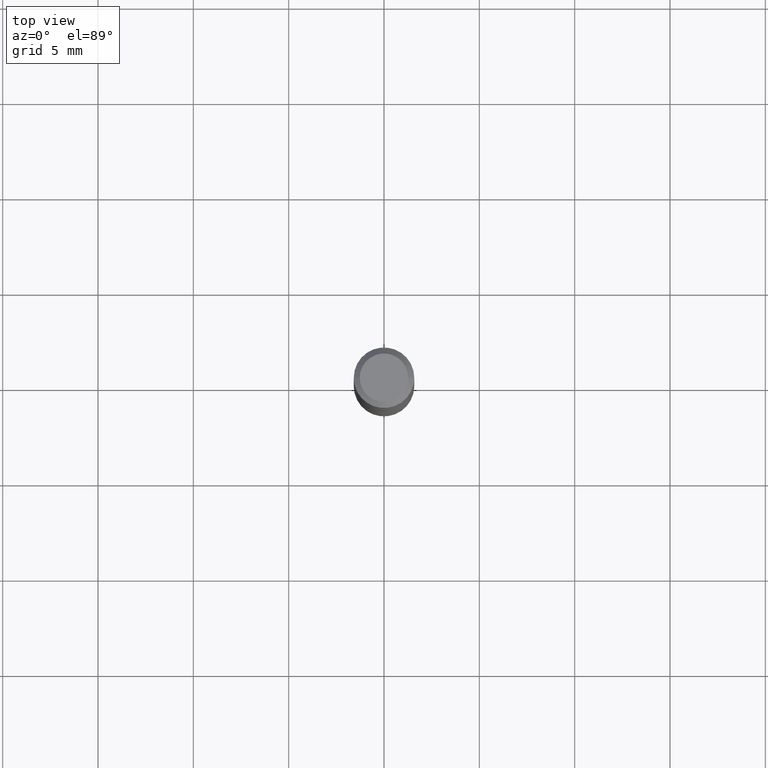
[diagram: clean part render]
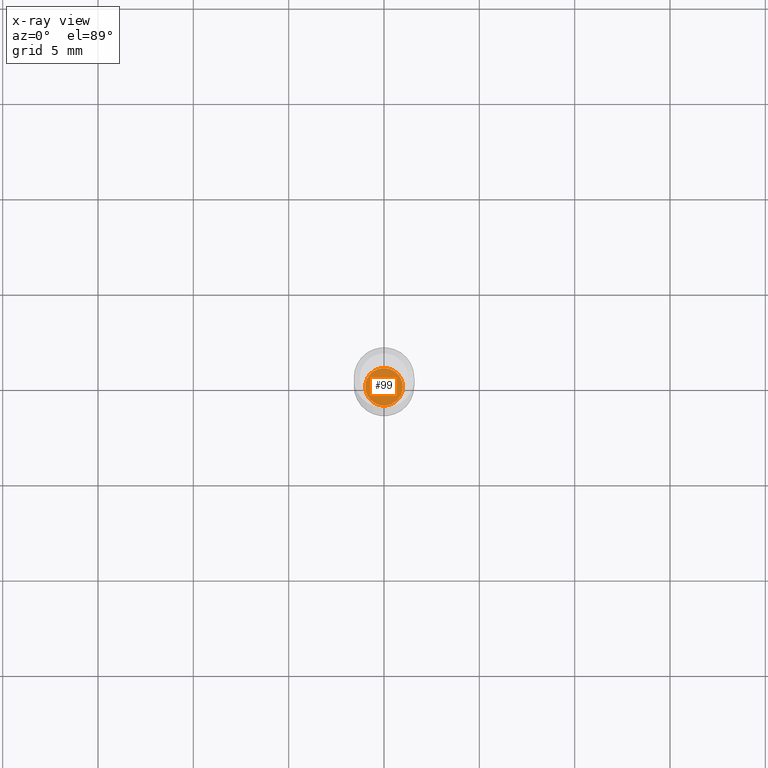
[diagram: x-ray — body ghosted, one internal face saturated and labeled with its STEP entity id]
A machine part, top view, then the same camera in x-ray: the body is ghosted and one INTERNAL B-rep face — a face not visible from any outside direction — is saturated and labeled: STEP entity #99.
In plain terms, the highlighted planar face has unit normal (-0, 0, 1).
Its self-contained STEP definition (entity closure, byte-faithful):
#44 = AXIS2_PLACEMENT_3D ( 'NONE', #78, #419, #336 ) ;
#50 = DIRECTION ( 'NONE',  ( -2.445468806185136597E-29, 3.491481338843145583E-15, 1.000000000000000000 ) ) ;
#52 = ORIENTED_EDGE ( 'NONE', *, *, #286, .F. ) ;
#61 = ORIENTED_EDGE ( 'NONE', *, *, #89, .F. ) ;
#78 = CARTESIAN_POINT ( 'NONE',  ( 2.690015686803650369E-29, -3.840629472727460101E-15, -1.100000000000000089 ) ) ;
#89 = EDGE_CURVE ( 'NONE', #490, #317, #105, .T. ) ;
#91 = EDGE_LOOP ( 'NONE', ( #52, #61 ) ) ;
#99 = ADVANCED_FACE ( 'NONE', ( #148 ), #266, .F. ) ;
#105 = CIRCLE ( 'NONE', #44, 0.03874999999999999972 ) ;
#148 = FACE_OUTER_BOUND ( 'NONE', #91, .T. ) ;
#163 = AXIS2_PLACEMENT_3D ( 'NONE', #294, #184, #193 ) ;
#184 = DIRECTION ( 'NONE',  ( -2.438088387897960049E-29, 3.491481338843145188E-15, 1.000000000000000000 ) ) ;
#186 = CIRCLE ( 'NONE', #305, 0.03874999999999999972 ) ;
#193 = DIRECTION ( 'NONE',  ( 1.000000000000000000, -6.982962677686265922E-15, 4.876176775795935793E-29 ) ) ;
#266 = PLANE ( 'NONE',  #163 ) ;
#272 = DIRECTION ( 'NONE',  ( 1.000000000000000000, -6.982962677686263555E-15, 0.000000000000000000 ) ) ;
#286 = EDGE_CURVE ( 'NONE', #317, #490, #186, .T. ) ;
#294 = CARTESIAN_POINT ( 'NONE',  ( 2.690015686803650369E-29, -3.840629472727460101E-15, -1.100000000000000089 ) ) ;
#305 = AXIS2_PLACEMENT_3D ( 'NONE', #353, #50, #272 ) ;
#317 = VERTEX_POINT ( 'NONE', #349 ) ;
#336 = DIRECTION ( 'NONE',  ( 1.000000000000000000, -6.982962677686263555E-15, 0.000000000000000000 ) ) ;
#349 = CARTESIAN_POINT ( 'NONE',  ( 0.03874999999999999972, -4.111219276487802621E-15, -1.100000000000000089 ) ) ;
#353 = CARTESIAN_POINT ( 'NONE',  ( 2.690015686803650369E-29, -3.840629472727460101E-15, -1.100000000000000089 ) ) ;
#377 = CARTESIAN_POINT ( 'NONE',  ( -0.03874999999999999972, -3.562644935446310425E-15, -1.100000000000000089 ) ) ;
#419 = DIRECTION ( 'NONE',  ( -2.445468806185136597E-29, 3.491481338843145583E-15, 1.000000000000000000 ) ) ;
#490 = VERTEX_POINT ( 'NONE', #377 ) ;